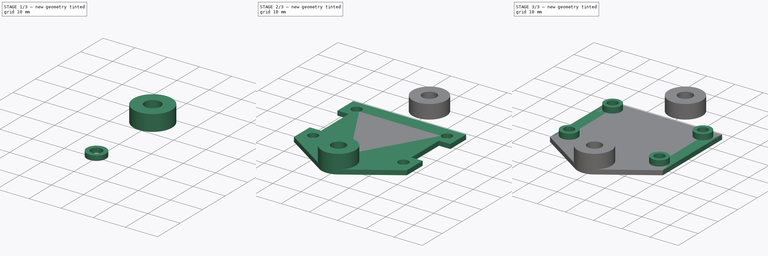
[diagram: build sequence overview — one tinted view per stage of 3, left to right]
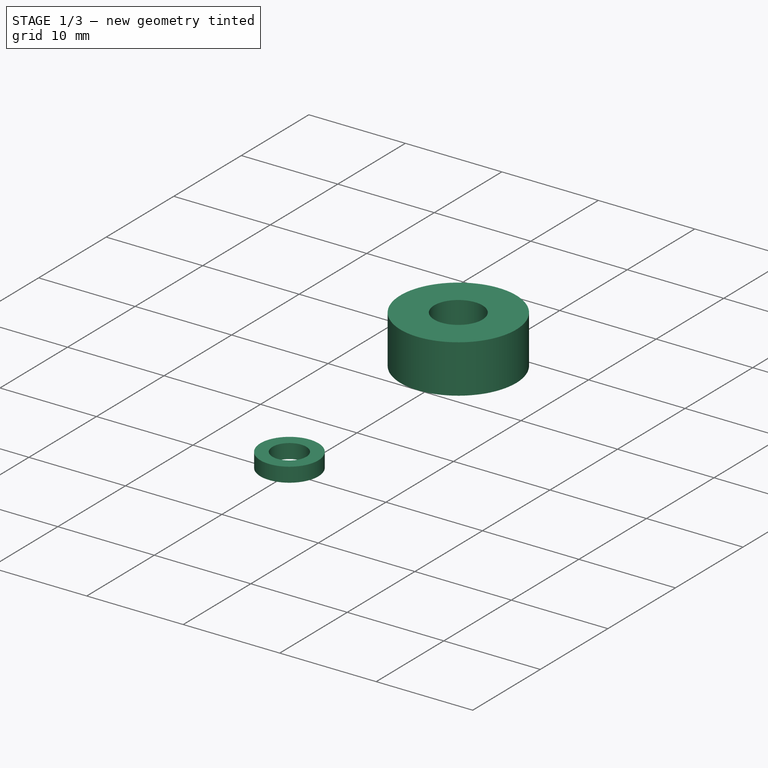
[diagram: stage 1 of 3 — iso view after this stage's code; geometry added in this stage tinted green]
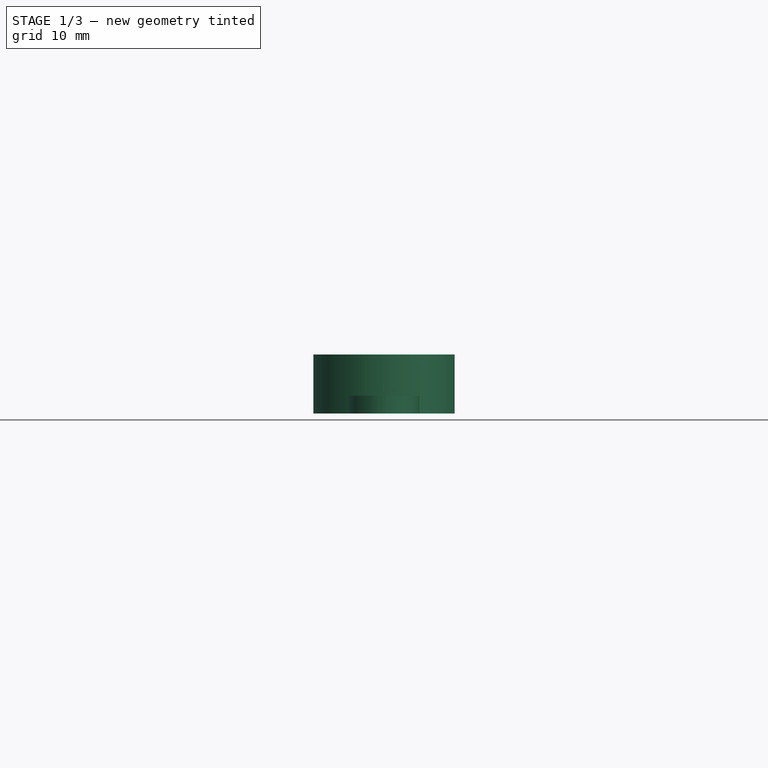
[diagram: stage 1 of 3 — front view after this stage's code; geometry added in this stage tinted green]
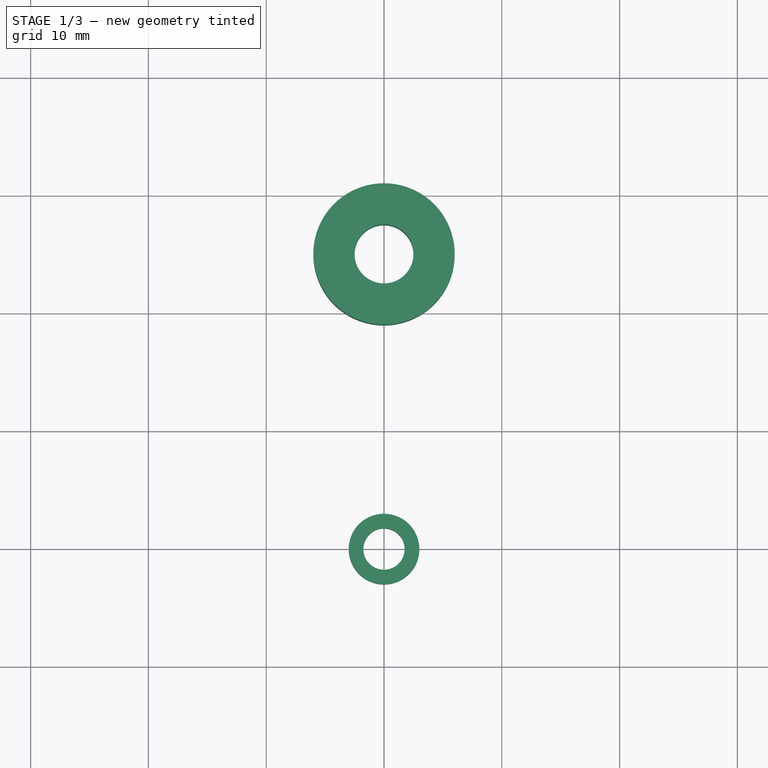
[diagram: stage 1 of 3 — top view after this stage's code; geometry added in this stage tinted green]
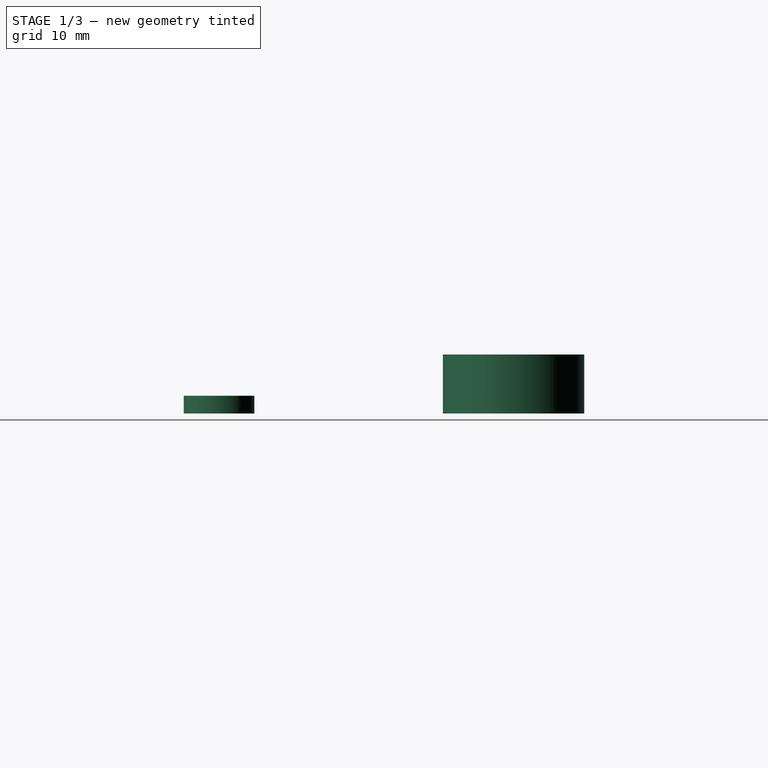
[diagram: stage 1 of 3 — right view after this stage's code; geometry added in this stage tinted green]
FCSTD DOCUMENT  (FreeCAD 0.16R)
Label: TLSmootherHolder
License: All rights reserved
LicenseURL: http://en.wikipedia.org/wiki/All_rights_reserved
objects: Sketcher::SketchObject×6, PartDesign::Pad×6, App::DocumentObjectGroup×2
note: 18 computed .brp shape members not serialized (recipe doc carries the construction recipe); baked Part::Feature solids carry a one-line shape summary decoded from their .brp

FEATURE [Sketcher::SketchObject] Sketch004
  Placement = pos=(0,25,0) rot=(0,0,1;0rad)
  sketch-geometry (2):
    g0: Circle CenterX=0 CenterY=0 CenterZ=0 NormalX=0 NormalY=0 NormalZ=1 Radius=6
    g1: Circle CenterX=0 CenterY=0 CenterZ=0 NormalX=0 NormalY=0 NormalZ=1 Radius=2.5
  constraints (4):
    c: Coincident(g0,g-1)
    c: Coincident(g1,g-1)
    c: Radius(g0) = 6
    c: Radius(g1) = 2.5
FEATURE [PartDesign::Pad] Pad004
  Length = 5
  Length2 = 100
  Placement = pos=(0,25,0) rot=(0,0,1;0rad)
  Sketch = -> Sketch004
  Type = 0
FEATURE [App::DocumentObjectGroup] Group001
  Group = -> [Pad001,Pad002,Pad004]
FEATURE [Sketcher::SketchObject] Sketch005
  sketch-geometry (2):
    g0: Circle CenterX=0 CenterY=0 CenterZ=0 NormalX=0 NormalY=0 NormalZ=1 Radius=1.75
    g1: Circle CenterX=0 CenterY=0 CenterZ=0 NormalX=0 NormalY=0 NormalZ=1 Radius=3
  constraints (4):
    c: Coincident(g0,g-1)
    c: Coincident(g1,g-1)
    c: Radius(g0) = 1.75
    c: Radius(g1) = 3
FEATURE [PartDesign::Pad] Pad005
  Length = 1.5
  Length2 = 100
  Sketch = -> Sketch005
  Type = 0
FEATURE [App::DocumentObjectGroup] Group
  Group = -> [Pad,Pad003,Pad005]
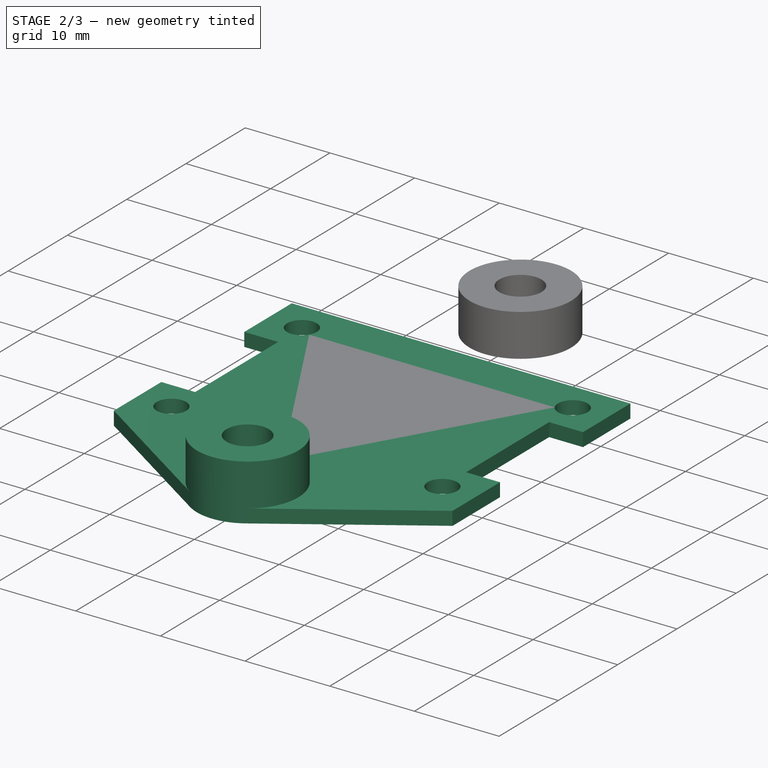
[diagram: stage 2 of 3 — iso view after this stage's code; geometry added in this stage tinted green]
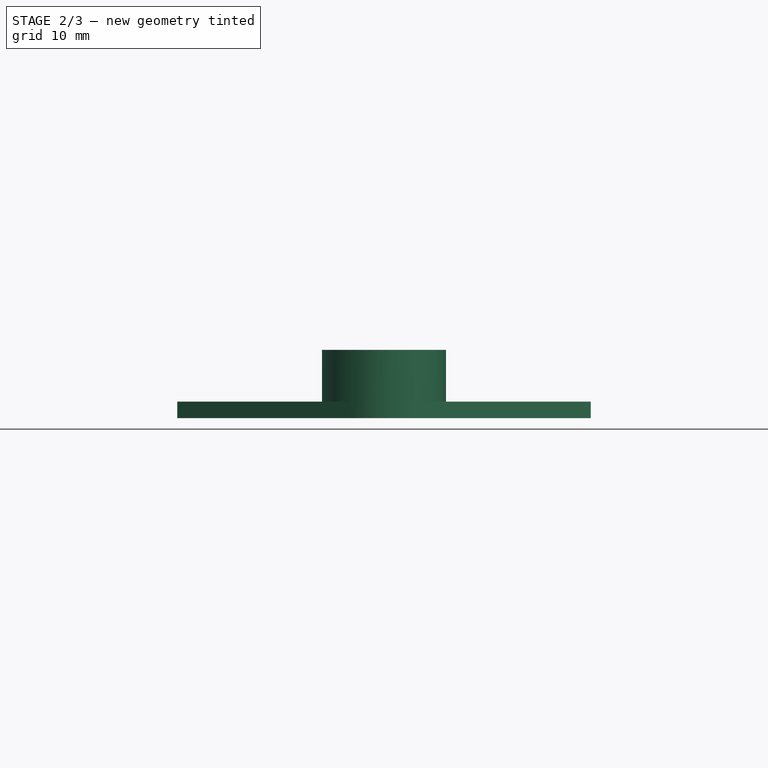
[diagram: stage 2 of 3 — front view after this stage's code; geometry added in this stage tinted green]
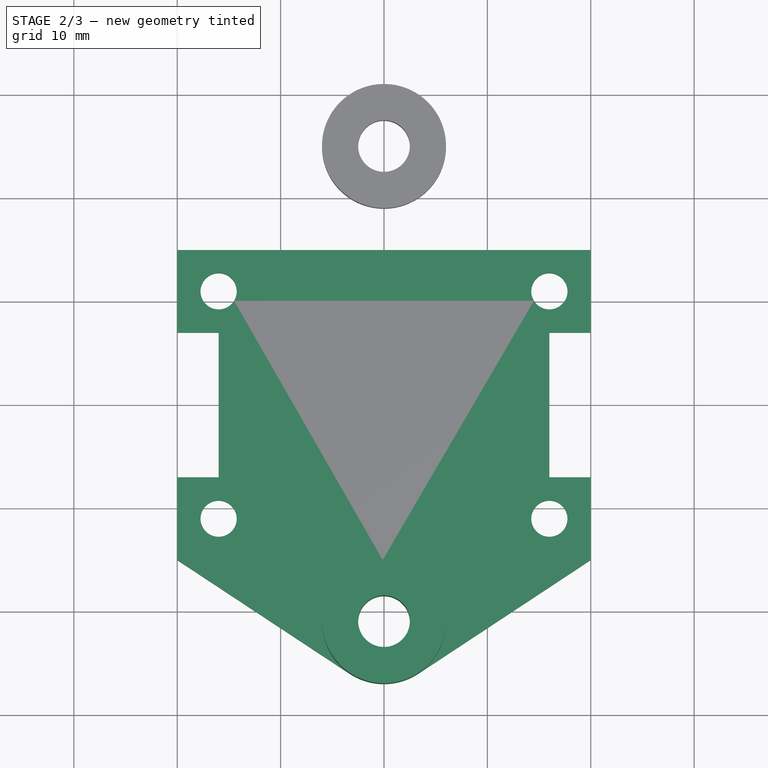
[diagram: stage 2 of 3 — top view after this stage's code; geometry added in this stage tinted green]
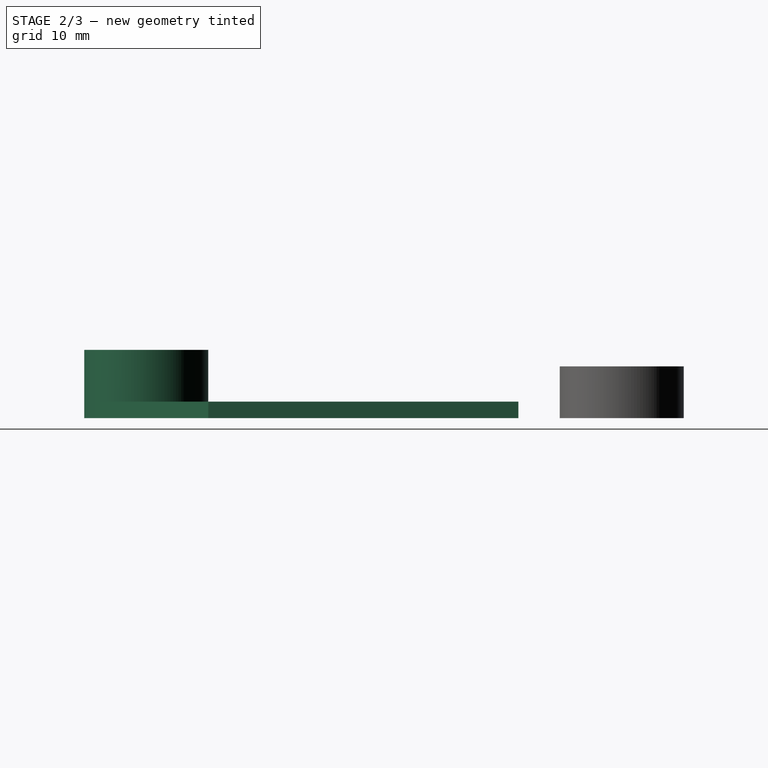
[diagram: stage 2 of 3 — right view after this stage's code; geometry added in this stage tinted green]
FEATURE [Sketcher::SketchObject] Sketch
  sketch-geometry (21):
    g0: Circle CenterX=-16 CenterY=11 CenterZ=0 NormalX=0 NormalY=0 NormalZ=1 Radius=1.75
    g1: Circle CenterX=16 CenterY=11 CenterZ=0 NormalX=0 NormalY=0 NormalZ=1 Radius=1.75
    g2: Circle CenterX=-16 CenterY=-11 CenterZ=0 NormalX=0 NormalY=0 NormalZ=1 Radius=1.75
    g3: Circle CenterX=16 CenterY=-11 CenterZ=0 NormalX=0 NormalY=0 NormalZ=1 Radius=1.75
    g4: LineSegment StartX=-20 StartY=15 StartZ=0 EndX=20 EndY=15 EndZ=0
    g5: LineSegment [constr] StartX=20 StartY=-15 StartZ=0 EndX=-20 EndY=-15 EndZ=0
    g6: LineSegment StartX=-20 StartY=15 StartZ=0 EndX=-20 EndY=7 EndZ=0
    g7: LineSegment StartX=-20 StartY=7 StartZ=0 EndX=-16 EndY=7 EndZ=0
    g8: LineSegment StartX=-16 StartY=7 StartZ=0 EndX=-16 EndY=-7 EndZ=0
    g9: LineSegment StartX=-16 StartY=-7 StartZ=0 EndX=-20 EndY=-7 EndZ=0
    g10: LineSegment StartX=-20 StartY=-7 StartZ=0 EndX=-20 EndY=-15 EndZ=0
    g11: LineSegment [constr] StartX=-16 StartY=11 StartZ=0 EndX=16 EndY=11 EndZ=0
    g12: LineSegment StartX=20 StartY=15 StartZ=0 EndX=20 EndY=7 EndZ=0
    g13: LineSegment StartX=20 StartY=7 StartZ=0 EndX=16 EndY=7 EndZ=0
    g14: LineSegment StartX=16 StartY=7 StartZ=0 EndX=16 EndY=-7 EndZ=0
    g15: LineSegment StartX=16 StartY=-7 StartZ=0 EndX=20 EndY=-7 EndZ=0
    g16: LineSegment StartX=20 StartY=-7 StartZ=0 EndX=20 EndY=-15 EndZ=0
    g17: LineSegment StartX=-20 StartY=-15 StartZ=0 EndX=-3.30275 EndY=-26.0092 EndZ=0
    g18: LineSegment StartX=3.30275 StartY=-26.0092 StartZ=0 EndX=20 EndY=-15 EndZ=0
    g19: ArcOfCircle CenterX=0 CenterY=-21 CenterZ=0 NormalX=0 NormalY=0 NormalZ=1 Radius=6 StartAngle=4.12948 EndAngle=5.2953
    g20: Circle CenterX=0 CenterY=-21 CenterZ=0 NormalX=0 NormalY=0 NormalZ=1 Radius=2.5
  constraints (56):
    c: Symmetric(g0,g1,g-2)
    c: Symmetric(g0,g2,g-1)
    c: Symmetric(g0,g3,g-1)
    c: Equal(g0,g1)
    c: Equal(g1,g3)
    c: Equal(g3,g2)
    c: Radius(g0) = 1.75
    c: DistanceX(g0,g1) = 32
    c: DistanceY(g2,g0) = 22
    c: Horizontal(g4)
    c: Horizontal(g5)
    c: DistanceX(g4,g4) = 40
    c: Symmetric(g4,g5,g-1)
    c: DistanceY(g5,g4) = 30
    c: Equal(g4,g5)
    c: Coincident(g4,g6)
    c: Vertical(g6)
    c: Coincident(g6,g7)
    c: Horizontal(g7)
    c: Coincident(g7,g8)
    c: Vertical(g8)
    c: Coincident(g8,g9)
    c: Horizontal(g9)
    c: Coincident(g9,g10)
    c: Coincident(g10,g5)
    c: Vertical(g10)
    c: Symmetric(g8,g7,g-1)
    c: PointOnObject(g0,g8)
    c: Coincident(g11,g0)
    c: Coincident(g11,g1)
    c: Symmetric(g6,g4,g11)
    c: Equal(g6,g10)
    c: Coincident(g4,g12)
    c: Vertical(g12)
    c: Coincident(g12,g13)
    c: Horizontal(g13)
    c: Coincident(g13,g14)
    c: Vertical(g14)
    c: Coincident(g14,g15)
    c: Horizontal(g15)
    c: Coincident(g15,g16)
    c: Coincident(g16,g5)
    c: Vertical(g16)
    c: Equal(g7,g13)
    c: PointOnObject(g1,g14)
    c: Equal(g14,g8)
    c: Equal(g12,g6)
    c: Coincident(g5,g17)
    c: Coincident(g5,g18)
    c: Tangent(g17,g19) = -1.5708
    c: Tangent(g18,g19) = -1.5708
    c: PointOnObject(g20,g-2)
    c: Radius(g20) = 2.5
    c: DistanceY(g20,g5) = 6
    c: Coincident(g19,g20)
    c: Radius(g19) = 6
FEATURE [PartDesign::Pad] Pad
  Length = 1.6
  Length2 = 100
  Sketch = -> Sketch
  Type = 0
FEATURE [Sketcher::SketchObject] Sketch003
  Placement = pos=(0,0,1.6) rot=(0,0,1;0rad)
  Support = -> Pad [Face21]
  sketch-geometry (2):
    g0: Circle CenterX=0 CenterY=-21 CenterZ=0 NormalX=0 NormalY=0 NormalZ=1 Radius=6
    g1: Circle CenterX=0 CenterY=-21 CenterZ=0 NormalX=0 NormalY=0 NormalZ=1 Radius=2.5
  constraints (5):
    c: PointOnObject(g0,g-2)
    c: DistanceY(g0,g-1) = 21
    c: Radius(g0) = 6
    c: Coincident(g1,g0)
    c: Radius(g1) = 2.5
FEATURE [PartDesign::Pad] Pad003
  Length = 5
  Length2 = 100
  Sketch = -> Sketch003
  Type = 0
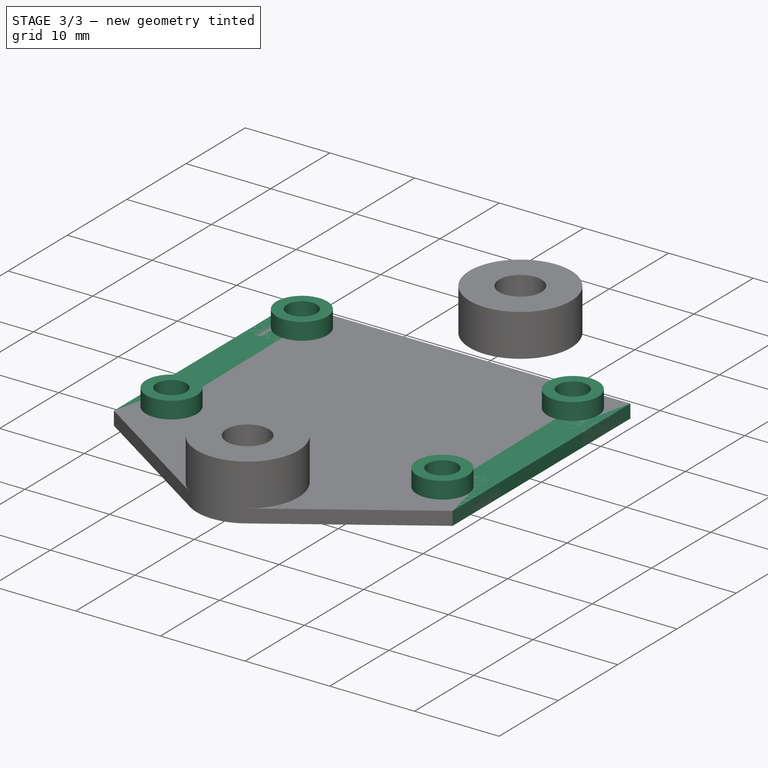
[diagram: stage 3 of 3 — iso view after this stage's code; geometry added in this stage tinted green]
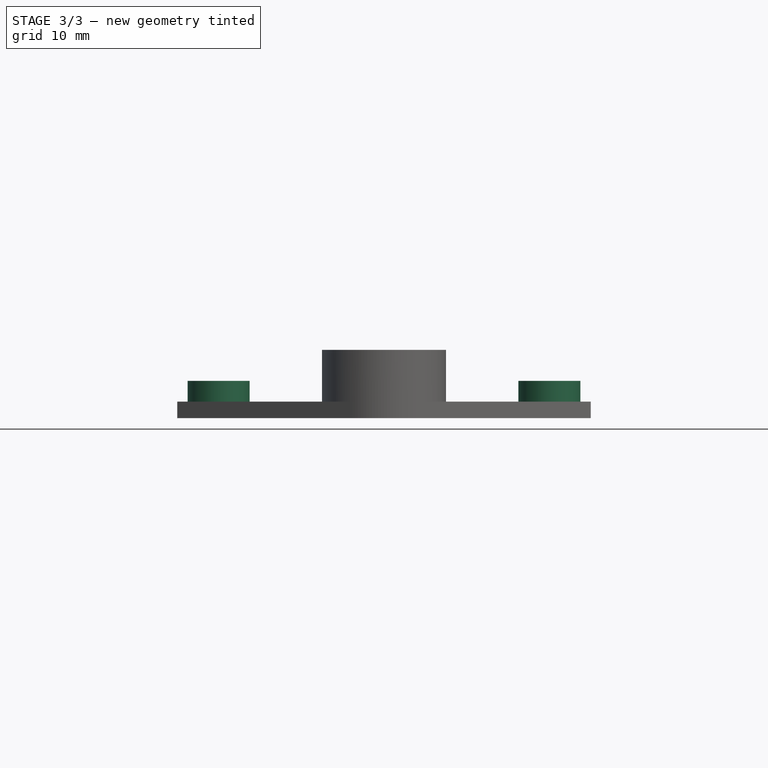
[diagram: stage 3 of 3 — front view after this stage's code; geometry added in this stage tinted green]
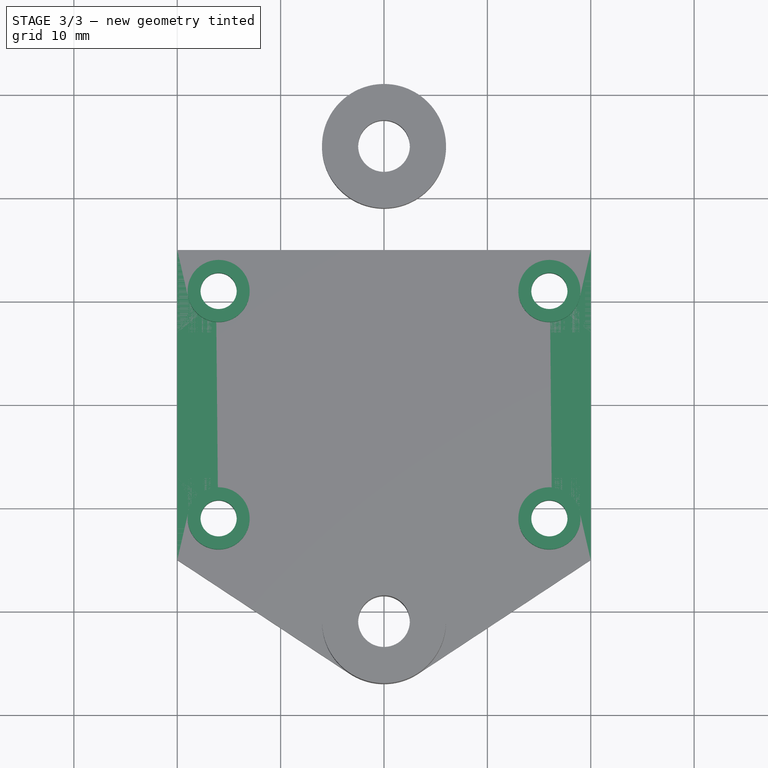
[diagram: stage 3 of 3 — top view after this stage's code; geometry added in this stage tinted green]
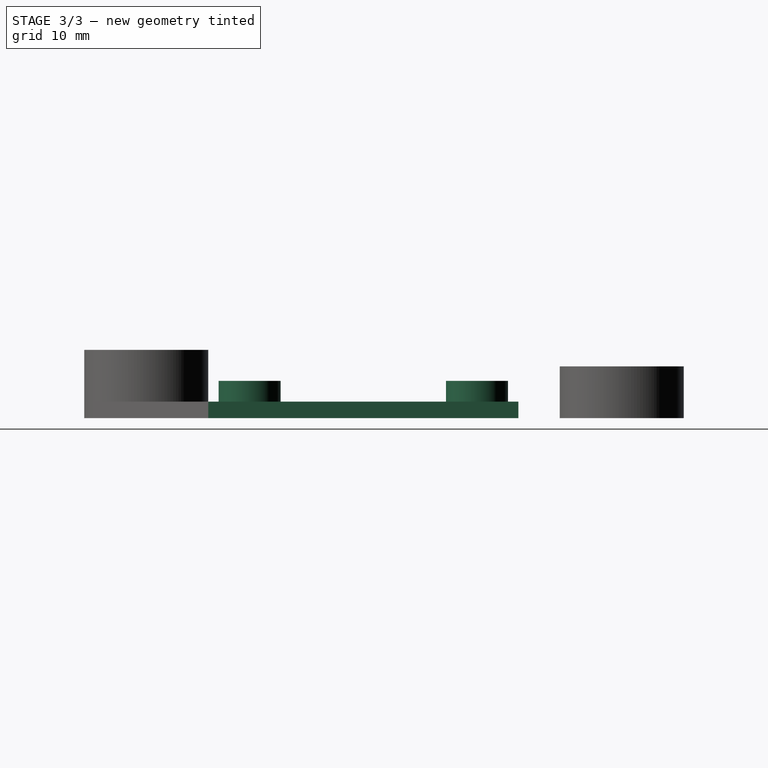
[diagram: stage 3 of 3 — right view after this stage's code; geometry added in this stage tinted green]
FEATURE [Sketcher::SketchObject] Sketch001
  sketch-geometry (12):
    g0: Circle CenterX=-16 CenterY=11 CenterZ=0 NormalX=0 NormalY=0 NormalZ=1 Radius=1.75
    g1: Circle CenterX=16 CenterY=11 CenterZ=0 NormalX=0 NormalY=0 NormalZ=1 Radius=1.75
    g2: Circle CenterX=-16 CenterY=-11 CenterZ=0 NormalX=0 NormalY=0 NormalZ=1 Radius=1.75
    g3: Circle CenterX=16 CenterY=-11 CenterZ=0 NormalX=0 NormalY=0 NormalZ=1 Radius=1.75
    g4: LineSegment StartX=-20 StartY=15 StartZ=0 EndX=20 EndY=15 EndZ=0
    g5: LineSegment [constr] StartX=20 StartY=-15 StartZ=0 EndX=-20 EndY=-15 EndZ=0
    g6: LineSegment StartX=-20 StartY=15 StartZ=0 EndX=-20 EndY=-15 EndZ=0
    g7: LineSegment StartX=20 StartY=15 StartZ=0 EndX=20 EndY=-15 EndZ=0
    g8: LineSegment StartX=-20 StartY=-15 StartZ=0 EndX=-3.30275 EndY=-26.0092 EndZ=0
    g9: LineSegment StartX=3.30275 StartY=-26.0092 StartZ=0 EndX=20 EndY=-15 EndZ=0
    g10: ArcOfCircle CenterX=0 CenterY=-21 CenterZ=0 NormalX=0 NormalY=0 NormalZ=1 Radius=6 StartAngle=4.12948 EndAngle=5.2953
    g11: Circle CenterX=0 CenterY=-21 CenterZ=0 NormalX=0 NormalY=0 NormalZ=1 Radius=2.5
  constraints (30):
    c: Symmetric(g0,g1,g-2)
    c: Symmetric(g0,g2,g-1)
    c: Symmetric(g0,g3,g-1)
    c: Equal(g0,g1)
    c: Equal(g1,g3)
    c: Equal(g3,g2)
    c: Radius(g0) = 1.75
    c: DistanceX(g0,g1) = 32
    c: DistanceY(g2,g0) = 22
    c: Horizontal(g4)
    c: Horizontal(g5)
    c: DistanceX(g4,g4) = 40
    c: Symmetric(g4,g5,g-1)
    c: DistanceY(g5,g4) = 30
    c: Equal(g4,g5)
    c: Coincident(g4,g6)
    c: Vertical(g6)
    c: Coincident(g4,g7)
    c: Vertical(g7)
    c: Coincident(g7,g5)
    c: Coincident(g5,g6)
    c: Coincident(g5,g8)
    c: Coincident(g9,g5)
    c: Tangent(g8,g10) = -1.5708
    c: Tangent(g9,g10) = -1.5708
    c: PointOnObject(g10,g-2)
    c: Coincident(g11,g10)
    c: Radius(g11) = 2.5
    c: Radius(g10) = 6
    c: DistanceY(g10,g5) = 6
FEATURE [PartDesign::Pad] Pad001
  Length = 1.6
  Length2 = 100
  Sketch = -> Sketch001
  Type = 0
FEATURE [Sketcher::SketchObject] Sketch002
  Placement = pos=(0,0,1.6) rot=(0,0,1;0rad)
  Support = -> Pad001 [Face13]
  sketch-geometry (8):
    g0: Circle CenterX=-16 CenterY=11 CenterZ=0 NormalX=0 NormalY=0 NormalZ=1 Radius=1.75
    g1: Circle CenterX=16 CenterY=11 CenterZ=0 NormalX=0 NormalY=0 NormalZ=1 Radius=1.75
    g2: Circle CenterX=-16 CenterY=-11 CenterZ=0 NormalX=0 NormalY=0 NormalZ=1 Radius=1.75
    g3: Circle CenterX=16 CenterY=-11 CenterZ=0 NormalX=0 NormalY=0 NormalZ=1 Radius=1.75
    g4: Circle CenterX=-16 CenterY=11 CenterZ=0 NormalX=0 NormalY=0 NormalZ=1 Radius=3
    g5: Circle CenterX=16 CenterY=11 CenterZ=0 NormalX=0 NormalY=0 NormalZ=1 Radius=3
    g6: Circle CenterX=16 CenterY=-11 CenterZ=0 NormalX=0 NormalY=0 NormalZ=1 Radius=3
    g7: Circle CenterX=-16 CenterY=-11 CenterZ=0 NormalX=0 NormalY=0 NormalZ=1 Radius=3
  constraints (17):
    c: Symmetric(g0,g1,g-2)
    c: Symmetric(g0,g2,g-1)
    c: Symmetric(g0,g3,g-1)
    c: Equal(g0,g1)
    c: Equal(g1,g3)
    c: Equal(g3,g2)
    c: Radius(g0) = 1.75
    c: DistanceX(g0,g1) = 32
    c: DistanceY(g2,g0) = 22
    c: Coincident(g4,g0)
    c: Coincident(g5,g1)
    c: Coincident(g6,g3)
    c: Coincident(g7,g2)
    c: Equal(g4,g5)
    c: Equal(g5,g6)
    c: Equal(g6,g7)
    c: Radius(g4) = 3
FEATURE [PartDesign::Pad] Pad002
  Length = 2
  Length2 = 100
  Sketch = -> Sketch002
  Type = 0
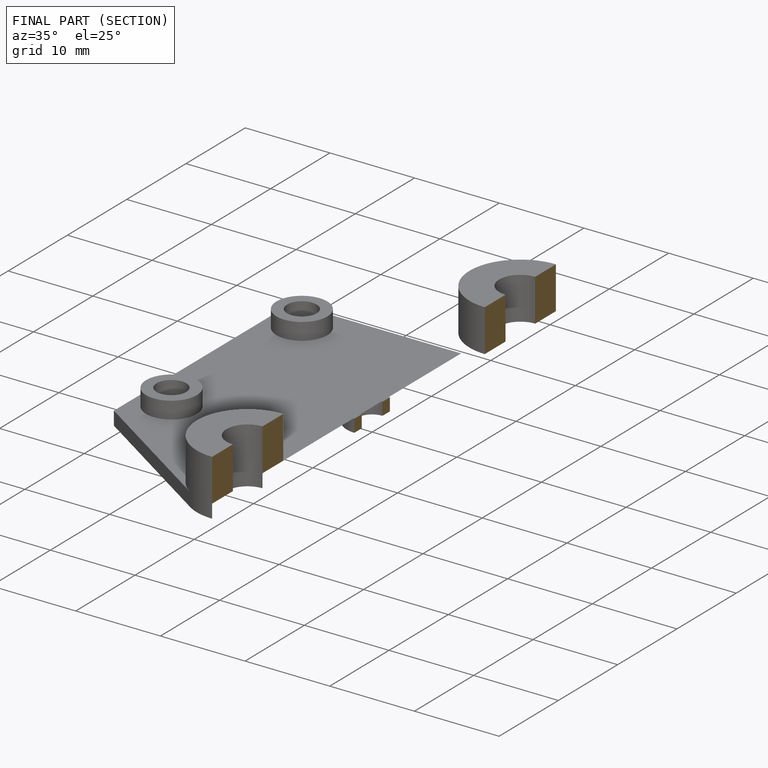
[diagram: finished part — half-section view (interior)]
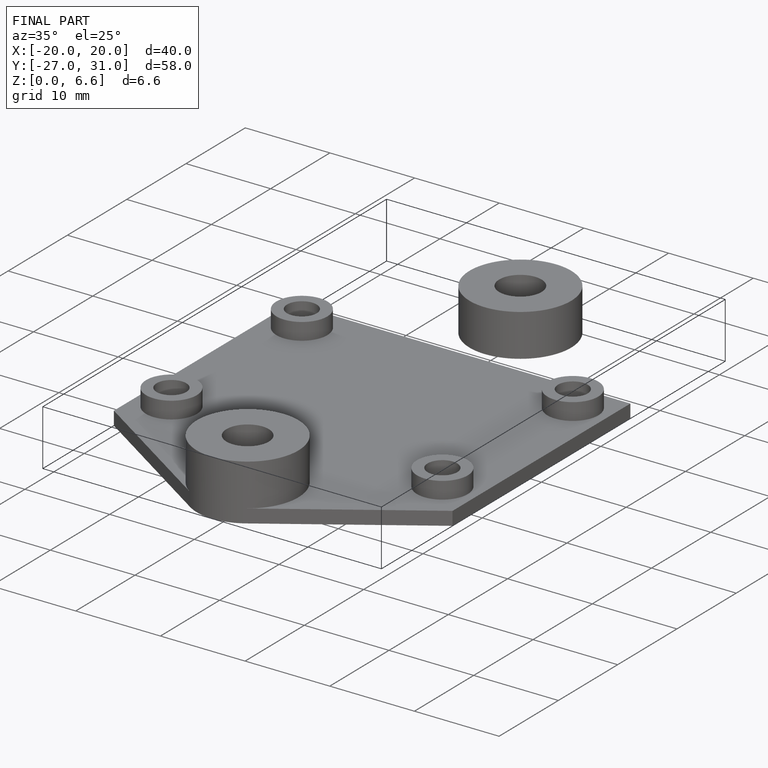
[diagram: finished part — iso view with bounding-box wireframe]
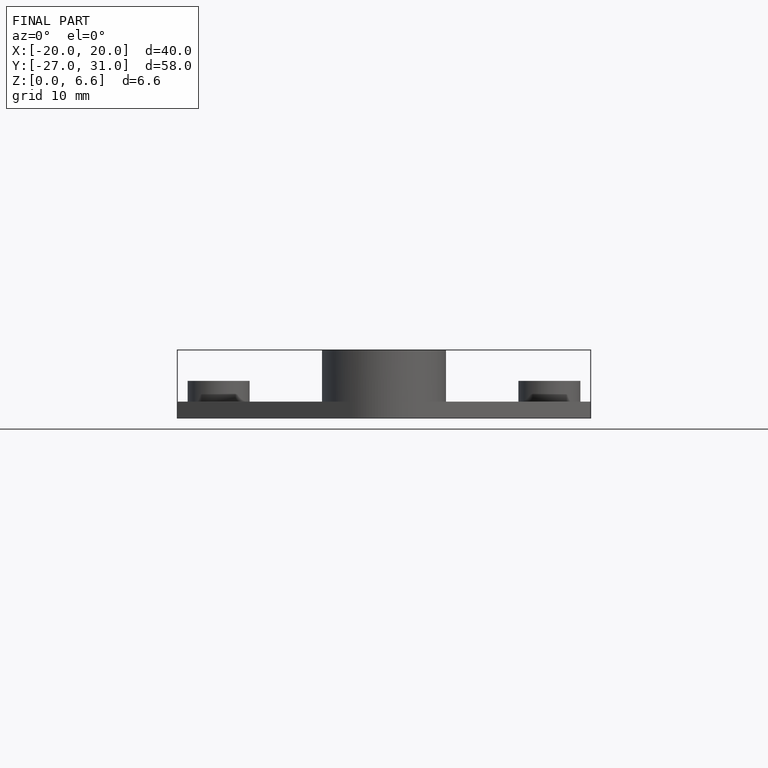
[diagram: finished part — front view with bounding-box wireframe]
